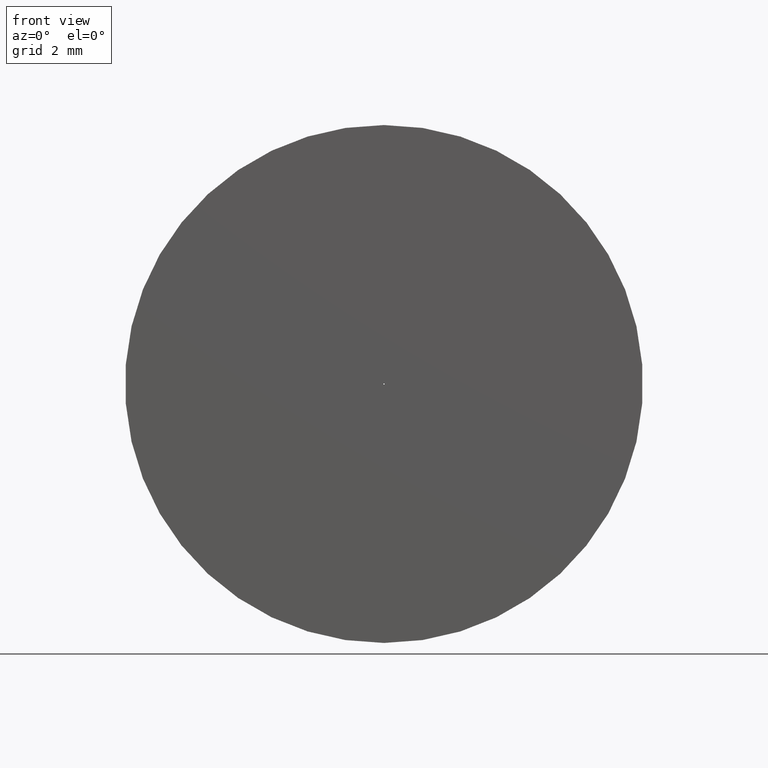
[diagram: clean part render]
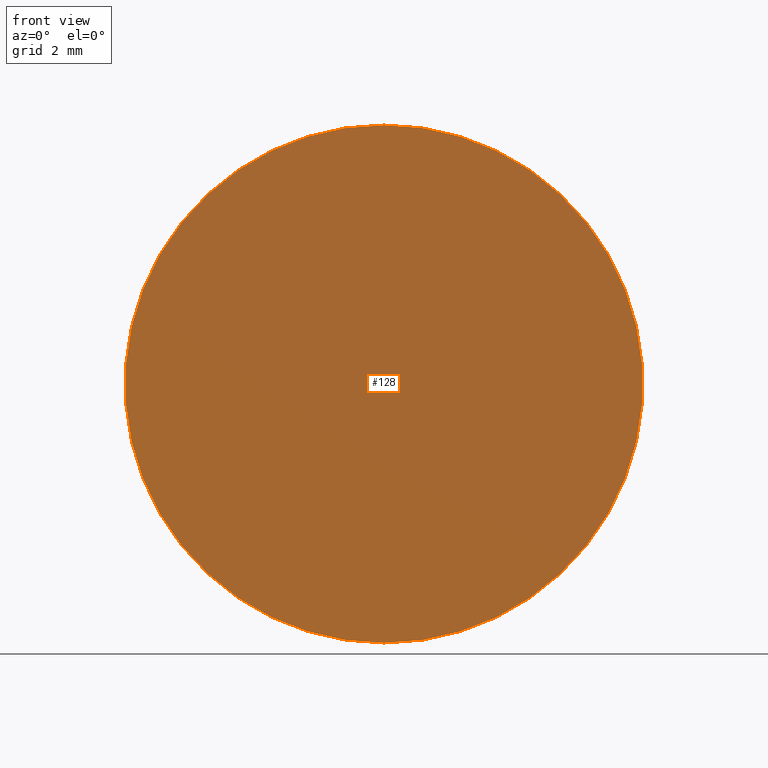
[diagram: same view with one face highlighted and labeled with its STEP entity id]
A machine part, front view. The second image highlights one B-rep face of the part: STEP entity #128.
In plain terms, the highlighted planar face has unit normal (0, 1, 0).
Its self-contained STEP definition (entity closure, byte-faithful):
#5 = DIRECTION ( 'NONE',  ( 0.000000000000000000, 1.000000000000000000, 0.000000000000000000 ) ) ;
#11 = CARTESIAN_POINT ( 'NONE',  ( 0.000000000000000000, 0.000000000000000000, -0.01000000000000000021 ) ) ;
#17 = CARTESIAN_POINT ( 'NONE',  ( 0.000000000000000000, 0.000000000000000000, 0.000000000000000000 ) ) ;
#18 = DIRECTION ( 'NONE',  ( 0.000000000000000000, 1.000000000000000000, 0.000000000000000000 ) ) ;
#19 = FACE_OUTER_BOUND ( 'NONE', #124, .T. ) ;
#25 = VERTEX_POINT ( 'NONE', #76 ) ;
#28 = EDGE_CURVE ( 'NONE', #69, #25, #176, .T. ) ;
#33 = ORIENTED_EDGE ( 'NONE', *, *, #230, .T. ) ;
#41 = EDGE_CURVE ( 'NONE', #111, #133, #79, .T. ) ;
#45 = AXIS2_PLACEMENT_3D ( 'NONE', #17, #171, #173 ) ;
#65 = PLANE ( 'NONE',  #98 ) ;
#69 = VERTEX_POINT ( 'NONE', #11 ) ;
#76 = CARTESIAN_POINT ( 'NONE',  ( 1.224646799147353192E-18, 0.000000000000000000, 0.01000000000000000021 ) ) ;
#78 = ORIENTED_EDGE ( 'NONE', *, *, #28, .T. ) ;
#79 = CIRCLE ( 'NONE', #208, 4.750000000000000000 ) ;
#97 = DIRECTION ( 'NONE',  ( 0.000000000000000000, 0.000000000000000000, 1.000000000000000000 ) ) ;
#98 = AXIS2_PLACEMENT_3D ( 'NONE', #211, #247, #160 ) ;
#109 = ORIENTED_EDGE ( 'NONE', *, *, #246, .F. ) ;
#111 = VERTEX_POINT ( 'NONE', #192 ) ;
#112 = ORIENTED_EDGE ( 'NONE', *, *, #41, .F. ) ;
#113 = CARTESIAN_POINT ( 'NONE',  ( 0.000000000000000000, 0.000000000000000000, 0.000000000000000000 ) ) ;
#124 = EDGE_LOOP ( 'NONE', ( #112, #109 ) ) ;
#128 = ADVANCED_FACE ( 'NONE', ( #19, #186 ), #65, .F. ) ;
#133 = VERTEX_POINT ( 'NONE', #218 ) ;
#145 = CIRCLE ( 'NONE', #221, 0.01000000000000000021 ) ;
#153 = CARTESIAN_POINT ( 'NONE',  ( 0.000000000000000000, 0.000000000000000000, 0.000000000000000000 ) ) ;
#160 = DIRECTION ( 'NONE',  ( 0.000000000000000000, -0.000000000000000000, 1.000000000000000000 ) ) ;
#168 = EDGE_LOOP ( 'NONE', ( #78, #33 ) ) ;
#171 = DIRECTION ( 'NONE',  ( 0.000000000000000000, 1.000000000000000000, 0.000000000000000000 ) ) ;
#173 = DIRECTION ( 'NONE',  ( 0.000000000000000000, 0.000000000000000000, 1.000000000000000000 ) ) ;
#176 = CIRCLE ( 'NONE', #220, 0.01000000000000000021 ) ;
#186 = FACE_BOUND ( 'NONE', #168, .T. ) ;
#192 = CARTESIAN_POINT ( 'NONE',  ( 0.000000000000000000, 0.000000000000000000, -4.750000000000000000 ) ) ;
#204 = DIRECTION ( 'NONE',  ( 0.000000000000000000, 0.000000000000000000, 1.000000000000000000 ) ) ;
#208 = AXIS2_PLACEMENT_3D ( 'NONE', #153, #5, #224 ) ;
#211 = CARTESIAN_POINT ( 'NONE',  ( 0.000000000000000000, 0.000000000000000000, 0.000000000000000000 ) ) ;
#218 = CARTESIAN_POINT ( 'NONE',  ( 5.817072295949927426E-16, 0.000000000000000000, 4.750000000000000000 ) ) ;
#219 = CARTESIAN_POINT ( 'NONE',  ( 0.000000000000000000, 0.000000000000000000, 0.000000000000000000 ) ) ;
#220 = AXIS2_PLACEMENT_3D ( 'NONE', #113, #228, #204 ) ;
#221 = AXIS2_PLACEMENT_3D ( 'NONE', #219, #18, #97 ) ;
#224 = DIRECTION ( 'NONE',  ( 0.000000000000000000, 0.000000000000000000, 1.000000000000000000 ) ) ;
#228 = DIRECTION ( 'NONE',  ( 0.000000000000000000, 1.000000000000000000, 0.000000000000000000 ) ) ;
#230 = EDGE_CURVE ( 'NONE', #25, #69, #145, .T. ) ;
#233 = CIRCLE ( 'NONE', #45, 4.750000000000000000 ) ;
#246 = EDGE_CURVE ( 'NONE', #133, #111, #233, .T. ) ;
#247 = DIRECTION ( 'NONE',  ( 0.000000000000000000, 1.000000000000000000, 0.000000000000000000 ) ) ;